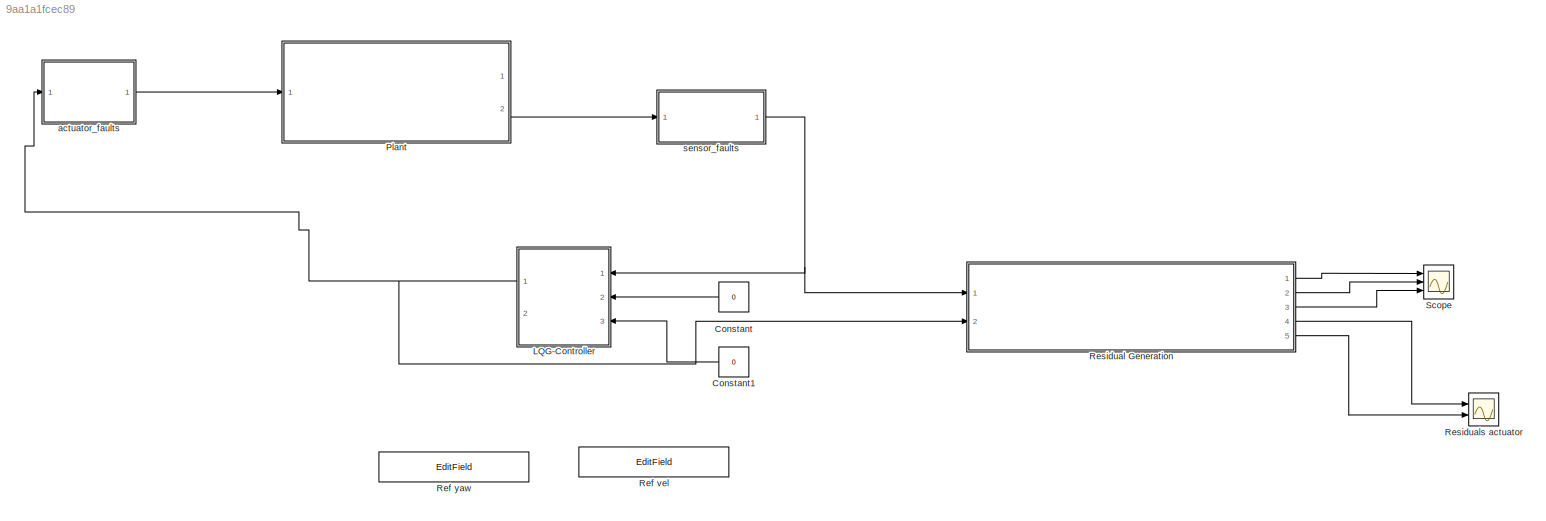
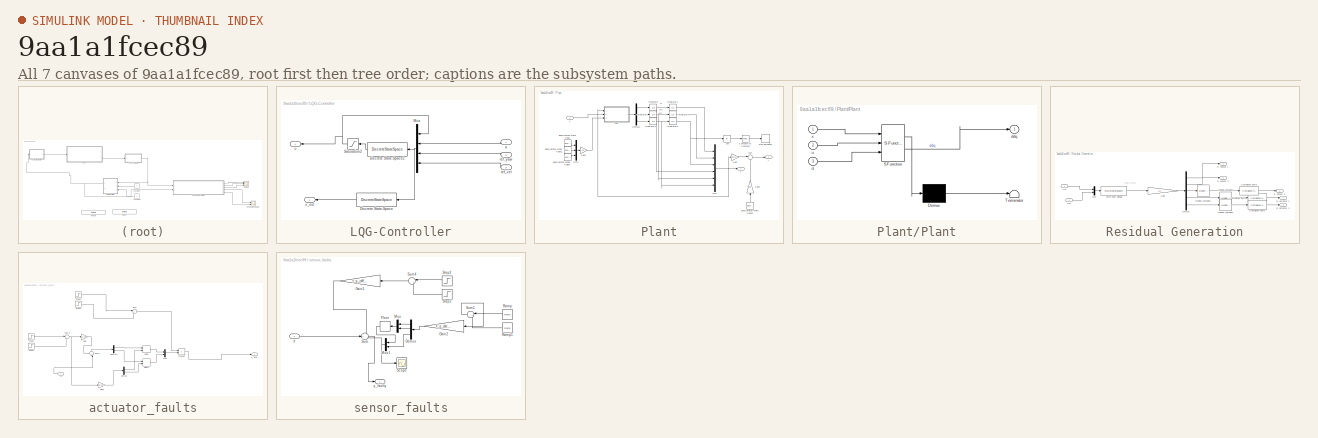
[diagram: thumbnail index - all 7 canvases of the model, root first then tree order]
MODEL slx_9aa1a1fcec89
KIND model
CONFIG AbsTol = auto
CONFIG EnableMultiTasking = off
CONFIG FixedStep = auto
CONFIG MaxStep = auto
CONFIG MinStep = auto
CONFIG RelTol = 1e-3
CONFIG SampleTimeConstraint = Unconstrained
CONFIG SolverName = ode45
CONFIG StartTime = 0.0
CONFIG StopTime = 30
BLOCK [Constant] Constant
  NameLocation = top
  Value = 0
BLOCK [Constant] Constant1
  NameLocation = top
  Value = 0
BLOCK [SubSystem] LQG-Controller
  NameLocation = top
  Ports = [3, 2]
  RequestExecContextInheritance = off
BLOCK [DiscreteStateSpace] LQG-Controller/Discrete State-Space
  A = reg_d.A
  B = reg_d.B
  C = diag(ones(1,8))
  D = zeros(8,7)
  NameLocation = top
  SampleTime = Ts
BLOCK [DiscreteStateSpace] LQG-Controller/Discrete State-Space2
  A = reg_d.A
  B = reg_d.B
  C = reg_d.C
  D = reg_d.D
  NameLocation = top
  SampleTime = Ts
BLOCK [Mux] LQG-Controller/Mux
  DisplayOption = bar
  NameLocation = top
  Ports = [4, 1]
BLOCK [Saturate] LQG-Controller/Saturation2
  LowerLimit = -8
  NameLocation = top
  UpperLimit = 8
BLOCK [Inport] LQG-Controller/ref_vel
  Port = 3
BLOCK [Inport] LQG-Controller/ref_yaw
  Port = 2
BLOCK [Outport] LQG-Controller/u
BLOCK [Outport] LQG-Controller/x_est
  NameLocation = top
  Port = 2
BLOCK [Inport] LQG-Controller/y
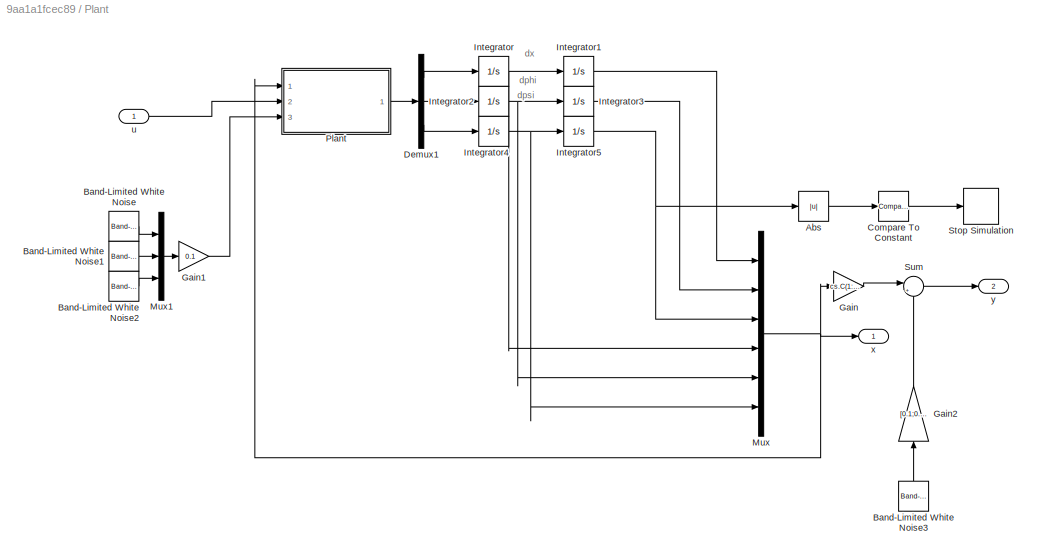
BLOCK [SubSystem] Plant
  Ports = [1, 2]
  RequestExecContextInheritance = off
BLOCK [Abs] Plant/Abs
  SaturateOnIntegerOverflow = off
BLOCK [Reference] Plant/Band-Limited White Noise  REF=simulink/Sources/Band-Limited
White Noise
  Ports = [0, 1]
  SourceBlock = simulink/Sources/Band-Limited\nWhite Noise
  SourceProductBaseCode = SL
  SourceType = Band-Limited White Noise.
BLOCK [Reference] Plant/Band-Limited White Noise1  REF=simulink/Sources/Band-Limited
White Noise
  Ports = [0, 1]
  SourceBlock = simulink/Sources/Band-Limited\nWhite Noise
  SourceProductBaseCode = SL
  SourceType = Band-Limited White Noise.
BLOCK [Reference] Plant/Band-Limited White Noise2  REF=simulink/Sources/Band-Limited
White Noise
  Ports = [0, 1]
  SourceBlock = simulink/Sources/Band-Limited\nWhite Noise
  SourceProductBaseCode = SL
  SourceType = Band-Limited White Noise.
BLOCK [Reference] Plant/Band-Limited White Noise3  REF=simulink/Sources/Band-Limited
White Noise
  NameLocation = right
  Ports = [0, 1]
  SourceBlock = simulink/Sources/Band-Limited\nWhite Noise
  SourceProductBaseCode = SL
  SourceType = Band-Limited White Noise.
BLOCK [Reference] Plant/Compare To Constant  REF=simulink/Logic and Bit
Operations/Compare
To Constant
  Ports = [1, 1]
  SourceBlock = simulink/Logic and Bit\nOperations/Compare\nTo Constant
  SourceProductBaseCode = SL
  SourceType = Compare To Constant
BLOCK [Demux] Plant/Demux1
  Outputs = 3
  Ports = [1, 3]
BLOCK [Gain] Plant/Gain
  Gain = cs.C(1:3,:)
  Multiplication = Matrix(K*u)
BLOCK [Gain] Plant/Gain1
  Gain = 0.1
BLOCK [Gain] Plant/Gain2
  Gain = [0.1;0.1;0.5]
  NameLocation = right
BLOCK [Integrator] Plant/Integrator
  InitialCondition = dx_0
  Ports = [1, 1]
BLOCK [Integrator] Plant/Integrator1
  InitialCondition = x_0
  Ports = [1, 1]
BLOCK [Integrator] Plant/Integrator2
  Ports = [1, 1]
BLOCK [Integrator] Plant/Integrator3
  Ports = [1, 1]
BLOCK [Integrator] Plant/Integrator4
  InitialCondition = dpsi_0
  Ports = [1, 1]
BLOCK [Integrator] Plant/Integrator5
  InitialCondition = psi_0
  LowerSaturationLimit = -pi/2
  Ports = [1, 1]
  UpperSaturationLimit = pi/2
BLOCK [Mux] Plant/Mux
  DisplayOption = bar
  Inputs = 6
  Ports = [6, 1]
BLOCK [Mux] Plant/Mux1
  DisplayOption = bar
  Inputs = 3
  Ports = [3, 1]
BLOCK [SubSystem] Plant/Plant
  ErrorFcn = Stateflow.Translate.translate
  PermitHierarchicalResolution = ExplicitOnly
  Ports = [3, 1]
  RequestExecContextInheritance = off
  SFBlockType = MATLAB Function
  TreatAsAtomicUnit = on
BLOCK [Demux] Plant/Plant/ Demux 
  Outputs = 1
  Ports = [1, 1]
BLOCK [S-Function] Plant/Plant/ SFunction 
  EnableBusSupport = on
  FunctionName = sf_sfun
  Parameters = const
  PortCounts = [3 2]
  Ports = [3, 2]
  SFcnIsStateOwnerBlock = off
  SFunctionDeploymentMode = off
  Tag = Stateflow S-Function 2
BLOCK [Terminator] Plant/Plant/ Terminator 
BLOCK [Inport] Plant/Plant/d
  Port = 3
BLOCK [Outport] Plant/Plant/ddq
BLOCK [Inport] Plant/Plant/u
  Port = 2
BLOCK [Inport] Plant/Plant/x
BLOCK [Stop] Plant/Stop Simulation
BLOCK [Sum] Plant/Sum
  Inputs = |++
  Ports = [2, 1]
BLOCK [Inport] Plant/u
BLOCK [Outport] Plant/x
BLOCK [Outport] Plant/y
  Port = 2
BLOCK [EditField] Ref vel
  Alignment = Center
  LabelPosition = Hide
  ShowInitialText = on
BLOCK [EditField] Ref yaw
  Alignment = Center
  LabelPosition = Hide
  ShowInitialText = on
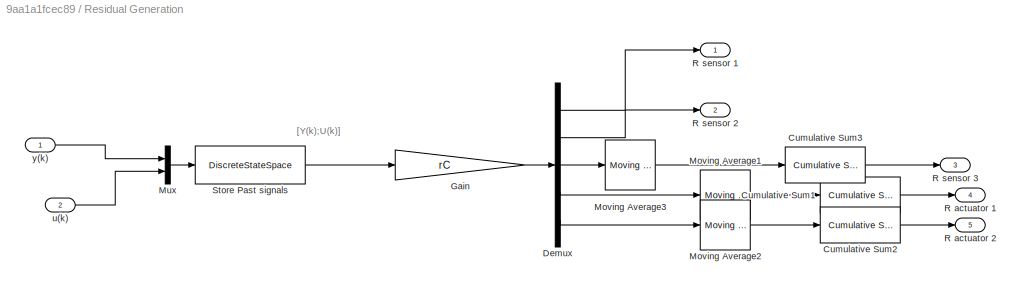
BLOCK [SubSystem] Residual Generation
  Ports = [2, 5]
  RequestExecContextInheritance = off
BLOCK [Reference] Residual Generation/Cumulative Sum1  REF=dspmathops/Cumulative
Sum
  Ports = [1, 1]
  SourceBlock = dspmathops/Cumulative\nSum
  SourceProductBaseCode = DS
  SourceType = Cumulative Sum
  UserDataPersistent = on
BLOCK [Reference] Residual Generation/Cumulative Sum2  REF=dspmathops/Cumulative
Sum
  Ports = [1, 1]
  SourceBlock = dspmathops/Cumulative\nSum
  SourceProductBaseCode = DS
  SourceType = Cumulative Sum
  UserDataPersistent = on
BLOCK [Reference] Residual Generation/Cumulative Sum3  REF=dspmathops/Cumulative
Sum
  Ports = [1, 1]
  SourceBlock = dspmathops/Cumulative\nSum
  SourceProductBaseCode = DS
  SourceType = Cumulative Sum
  UserDataPersistent = on
BLOCK [Demux] Residual Generation/Demux
  Outputs = 5
  Ports = [1, 5]
BLOCK [Gain] Residual Generation/Gain
  Gain = rC
  Multiplication = Matrix(K*u)
BLOCK [Reference] Residual Generation/Moving Average1  REF=dspstat3/Moving
Average
  Ports = [1, 1]
  SourceBlock = dspstat3/Moving\nAverage
  SourceProductBaseCode = DS
  SourceType = dsp.simulink.MovingAverage
BLOCK [Reference] Residual Generation/Moving Average2  REF=dspstat3/Moving
Average
  Ports = [1, 1]
  SourceBlock = dspstat3/Moving\nAverage
  SourceProductBaseCode = DS
  SourceType = dsp.simulink.MovingAverage
BLOCK [Reference] Residual Generation/Moving Average3  REF=dspstat3/Moving
Average
  Ports = [1, 1]
  SourceBlock = dspstat3/Moving\nAverage
  SourceProductBaseCode = DS
  SourceType = dsp.simulink.MovingAverage
BLOCK [Mux] Residual Generation/Mux
  DisplayOption = bar
  Inputs = 2
  Ports = [2, 1]
BLOCK [Outport] Residual Generation/R actuator 1
  Port = 4
BLOCK [Outport] Residual Generation/R actuator 2
  Port = 5
BLOCK [Outport] Residual Generation/R sensor 1
BLOCK [Outport] Residual Generation/R sensor 2
  Port = 2
BLOCK [Outport] Residual Generation/R sensor 3
  Port = 3
BLOCK [DiscreteStateSpace] Residual Generation/Store Past signals
  A = yuw.A
  B = yuw.B
  C = yuw.C
  D = yuw.D
  SampleTime = Ts
BLOCK [Inport] Residual Generation/u(k)
  Port = 2
BLOCK [Inport] Residual Generation/y(k)
BLOCK [Scope] Residuals actuator
  Floating = off
  NumInputPorts = 2
  Ports = [2]
  ScopeSpecificationString = Simulink.scopes.TimeScopeBlockCfg('CurrentConfiguration', extmgr.ConfigurationSet(extmgr.Configuration('Core','General UI',true,'FigureColor',[1 1 1]),extmgr.Configuration('Core','Source UI',true),extmgr.Configuration('Sources','WiredSimulink',true,'DataLoggingVariableName','ScopeData2'),extmgr.Configuration('Visuals','Time Domain',true,'PlotType','Stairs','SerializedDisplays',{struct('MinYLimReal...<+1797ch>
BLOCK [Scope] Scope
  Floating = off
  NumInputPorts = 3
  Ports = [3]
  ScopeSpecificationString = Simulink.scopes.TimeScopeBlockCfg('CurrentConfiguration', extmgr.ConfigurationSet(extmgr.Configuration('Core','General UI',true),extmgr.Configuration('Core','Source UI',true),extmgr.Configuration('Sources','WiredSimulink',true),extmgr.Configuration('Visuals','Time Domain',true,'SerializedDisplays',{struct('MinYLimReal','-2.59384','MaxYLimReal','2.47997','YLabelReal','','MinYLimMag','0.00000','MaxY...<+2817ch>
BLOCK [SubSystem] actuator_faults
  Ports = [1, 1]
  RequestExecContextInheritance = off
BLOCK [Delay] actuator_faults/Delay
  DelayLength = 100
  DelayLengthSource = Input port
  DelayLengthUpperLimit = 1000
  InputPortMap = u0,p1
  Ports = [2, 1]
  SampleTime = Ts
BLOCK [Delay] actuator_faults/Delay1
  DelayLength = 100
  DelayLengthSource = Input port
  DelayLengthUpperLimit = 1000
  InputPortMap = u0,p1
  Ports = [2, 1]
  SampleTime = Ts
BLOCK [Demux] actuator_faults/Demux
  Outputs = 2
  Ports = [1, 2]
BLOCK [Demux] actuator_faults/Demux1
  Outputs = 2
  Ports = [1, 2]
BLOCK [Gain] actuator_faults/Gain
  Gain = f_a_offset
BLOCK [Gain] actuator_faults/Gain1
  Gain = f_a_delay
  Multiplication = Matrix(K*u)
BLOCK [Mux] actuator_faults/Mux
  DisplayOption = bar
  Inputs = 2
  Ports = [2, 1]
BLOCK [Product] actuator_faults/Product
  Ports = [2, 1]
BLOCK [Step] actuator_faults/Step
  SampleTime = 0
  Time = f_t(1)
BLOCK [Step] actuator_faults/Step1
  After = -1
  SampleTime = 0
  Time = f_t(2)
BLOCK [Step] actuator_faults/Step2
  After = f_a_gain
  Before = 1
  SampleTime = 0
  Time = f_t(1)
BLOCK [Step] actuator_faults/Step3
  After = -f_a_gain + [1;1]
  SampleTime = 0
  Time = f_t(2)
BLOCK [Sum] actuator_faults/Sum
  Inputs = |++
  Ports = [2, 1]
BLOCK [Sum] actuator_faults/Sum1
  Inputs = ++|
  NameLocation = right
  Ports = [2, 1]
BLOCK [Sum] actuator_faults/Sum3
  Inputs = |++
  Ports = [2, 1]
BLOCK [Inport] actuator_faults/u
BLOCK [Outport] actuator_faults/u_faulty
BLOCK [SubSystem] sensor_faults
  Ports = [1, 1]
  RequestExecContextInheritance = off
BLOCK [Demux] sensor_faults/Demux
  NameLocation = top
  Outputs = 3
  Ports = [1, 3]
BLOCK [Rounding] sensor_faults/Floor
  NameLocation = top
BLOCK [Gain] sensor_faults/Gain1
  Gain = f_s_offset
  Multiplication = Matrix(K*u)
  NameLocation = top
BLOCK [Gain] sensor_faults/Gain2
  Gain = f_s_drift
  Multiplication = Matrix(K*u)
  NameLocation = top
BLOCK [Mux] sensor_faults/Mux
  DisplayOption = bar
  Inputs = 2
  NameLocation = top
  Ports = [2, 1]
BLOCK [Mux] sensor_faults/Mux1
  DisplayOption = bar
  Inputs = 2
  NameLocation = top
  Ports = [2, 1]
BLOCK [Reference] sensor_faults/Ramp  REF=simulink/Sources/Ramp
  NameLocation = top
  Ports = [0, 1]
  SourceBlock = simulink/Sources/Ramp
  SourceProductBaseCode = SL
  SourceType = Ramp
BLOCK [Reference] sensor_faults/Ramp1  REF=simulink/Sources/Ramp
  NameLocation = top
  Ports = [0, 1]
  SourceBlock = simulink/Sources/Ramp
  SourceProductBaseCode = SL
  SourceType = Ramp
BLOCK [Scope] sensor_faults/Scope
  Floating = off
  NumInputPorts = 1
  Ports = [1]
  ScopeSpecificationString = Simulink.scopes.TimeScopeBlockCfg('CurrentConfiguration', extmgr.ConfigurationSet(extmgr.Configuration('Core','General UI',true),extmgr.Configuration('Core','Source UI',true),extmgr.Configuration('Sources','WiredSimulink',true,'DataLoggingVariableName','ScopeData1'),extmgr.Configuration('Visuals','Time Domain',true,'SerializedDisplays',{struct('MinYLimReal','-2.5','MaxYLimReal','22.5','YLabelReal'...<+1366ch>
BLOCK [Step] sensor_faults/Step2
  NameLocation = top
  SampleTime = 0
  Time = f_t(1)
BLOCK [Step] sensor_faults/Step3
  After = -1
  NameLocation = top
  SampleTime = 0
  Time = f_t(2)
BLOCK [Sum] sensor_faults/Sum
  Inputs = +++
  Ports = [3, 1]
BLOCK [Sum] sensor_faults/Sum1
  Inputs = |++
  NameLocation = top
  Ports = [2, 1]
BLOCK [Sum] sensor_faults/Sum4
  Inputs = |++
  NameLocation = top
  Ports = [2, 1]
BLOCK [Inport] sensor_faults/y
BLOCK [Outport] sensor_faults/y_faulty
ANNOTATION Plant: dphi
ANNOTATION Plant: dpsi
ANNOTATION Plant: dx
ANNOTATION Residual Generation: [Y(k);U(k)]
LINE Constant1:1 -> LQG-Controller:3
LINE Constant:1 -> LQG-Controller:2
LINE LQG-Controller/Discrete State-Space2:1 -> LQG-Controller/Saturation2:1
LINE LQG-Controller/Discrete State-Space:1 -> LQG-Controller/x_est:1
NET LQG-Controller/Mux:1 -> LQG-Controller/Discrete State-Space2:1, LQG-Controller/Discrete State-Space:1
NET LQG-Controller/Saturation2:1 -> LQG-Controller/Mux:1, LQG-Controller/u:1
LINE LQG-Controller/ref_vel:1 -> LQG-Controller/Mux:4
LINE LQG-Controller/ref_yaw:1 -> LQG-Controller/Mux:3
LINE LQG-Controller/y:1 -> LQG-Controller/Mux:2
NET LQG-Controller:1 -> Residual Generation:2, actuator_faults:1
LINE Plant/Abs:1 -> Plant/Compare To Constant:1
LINE Plant/Band-Limited White Noise1:1 -> Plant/Mux1:2
LINE Plant/Band-Limited White Noise2:1 -> Plant/Mux1:3
LINE Plant/Band-Limited White Noise3:1 -> Plant/Gain2:1
LINE Plant/Band-Limited White Noise:1 -> Plant/Mux1:1
LINE Plant/Compare To Constant:1 -> Plant/Stop Simulation:1
LINE Plant/Demux1:1 -> Plant/Integrator:1
LINE Plant/Demux1:2 -> Plant/Integrator2:1
LINE Plant/Demux1:3 -> Plant/Integrator4:1
LINE Plant/Gain1:1 -> Plant/Plant:3
LINE Plant/Gain2:1 -> Plant/Sum:2
LINE Plant/Gain:1 -> Plant/Sum:1
LINE Plant/Integrator1:1 -> Plant/Mux:1
NET Plant/Integrator2:1 -> Plant/Integrator3:1, Plant/Mux:5
LINE Plant/Integrator3:1 -> Plant/Mux:2
NET Plant/Integrator4:1 -> Plant/Integrator5:1, Plant/Mux:6
NET Plant/Integrator5:1 -> Plant/Abs:1, Plant/Mux:3
NET Plant/Integrator:1 -> Plant/Integrator1:1, Plant/Mux:4
LINE Plant/Mux1:1 -> Plant/Gain1:1
NET Plant/Mux:1 -> Plant/Gain:1, Plant/Plant:1, Plant/x:1
LINE Plant/Plant:1 -> Plant/Demux1:1
LINE Plant/Sum:1 -> Plant/y:1
LINE Plant/u:1 -> Plant/Plant:2
LINE Plant:2 -> sensor_faults:1
LINE Residual Generation/Cumulative Sum1:1 -> Residual Generation/R actuator 1:1
LINE Residual Generation/Cumulative Sum2:1 -> Residual Generation/R actuator 2:1
LINE Residual Generation/Cumulative Sum3:1 -> Residual Generation/R sensor 3:1
LINE Residual Generation/Demux:1 -> Residual Generation/R sensor 1:1
LINE Residual Generation/Demux:2 -> Residual Generation/R sensor 2:1
LINE Residual Generation/Demux:3 -> Residual Generation/Moving Average3:1
LINE Residual Generation/Demux:4 -> Residual Generation/Moving Average1:1
LINE Residual Generation/Demux:5 -> Residual Generation/Moving Average2:1
LINE Residual Generation/Gain:1 -> Residual Generation/Demux:1
LINE Residual Generation/Moving Average1:1 -> Residual Generation/Cumulative Sum1:1
LINE Residual Generation/Moving Average2:1 -> Residual Generation/Cumulative Sum2:1
LINE Residual Generation/Moving Average3:1 -> Residual Generation/Cumulative Sum3:1
LINE Residual Generation/Mux:1 -> Residual Generation/Store Past signals:1
LINE Residual Generation/Store Past signals:1 -> Residual Generation/Gain:1
LINE Residual Generation/u(k):1 -> Residual Generation/Mux:2
LINE Residual Generation/y(k):1 -> Residual Generation/Mux:1
LINE Residual Generation:1 -> Scope:1
LINE Residual Generation:2 -> Scope:2
LINE Residual Generation:3 -> Scope:3
LINE Residual Generation:4 -> Residuals actuator:1
LINE Residual Generation:5 -> Residuals actuator:2
LINE actuator_faults/Delay1:1 -> actuator_faults/Mux:2
LINE actuator_faults/Delay:1 -> actuator_faults/Mux:1
LINE actuator_faults/Demux1:1 -> actuator_faults/Delay:1
LINE actuator_faults/Demux1:2 -> actuator_faults/Delay1:1
LINE actuator_faults/Demux:1 -> actuator_faults/Delay:2
LINE actuator_faults/Demux:2 -> actuator_faults/Delay1:2
LINE actuator_faults/Gain1:1 -> actuator_faults/Demux:1
LINE actuator_faults/Gain:1 -> actuator_faults/Sum1:1
LINE actuator_faults/Mux:1 -> actuator_faults/Product:2
LINE actuator_faults/Product:1 -> actuator_faults/u_faulty:1
LINE actuator_faults/Step1:1 -> actuator_faults/Sum3:2
LINE actuator_faults/Step2:1 -> actuator_faults/Sum:1
LINE actuator_faults/Step3:1 -> actuator_faults/Sum:2
LINE actuator_faults/Step:1 -> actuator_faults/Sum3:1
LINE actuator_faults/Sum1:1 -> actuator_faults/Demux1:1
NET actuator_faults/Sum3:1 -> actuator_faults/Gain1:1, actuator_faults/Gain:1
LINE actuator_faults/Sum:1 -> actuator_faults/Product:1
LINE actuator_faults/u:1 -> actuator_faults/Sum1:2
LINE actuator_faults:1 -> Plant:1
LINE sensor_faults/Demux:1 -> sensor_faults/Mux:1
LINE sensor_faults/Demux:2 -> sensor_faults/Mux:2
LINE sensor_faults/Demux:3 -> sensor_faults/Mux1:2
LINE sensor_faults/Floor:1 -> sensor_faults/Mux1:1
LINE sensor_faults/Gain1:1 -> sensor_faults/Sum:1
LINE sensor_faults/Gain2:1 -> sensor_faults/Demux:1
NET sensor_faults/Mux1:1 -> sensor_faults/Scope:1, sensor_faults/Sum:3
LINE sensor_faults/Mux:1 -> sensor_faults/Floor:1
LINE sensor_faults/Ramp1:1 -> sensor_faults/Sum1:2
LINE sensor_faults/Ramp:1 -> sensor_faults/Sum1:1
LINE sensor_faults/Step2:1 -> sensor_faults/Sum4:1
LINE sensor_faults/Step3:1 -> sensor_faults/Sum4:2
LINE sensor_faults/Sum1:1 -> sensor_faults/Gain2:1
LINE sensor_faults/Sum4:1 -> sensor_faults/Gain1:1
LINE sensor_faults/Sum:1 -> sensor_faults/y_faulty:1
LINE sensor_faults/y:1 -> sensor_faults/Sum:2
NET sensor_faults:1 -> LQG-Controller:1, Residual Generation:1
note: NET lines group one-source signal fan-out (src -> all destinations, sorted); 1:1 wires keep LINE
CHART Plant/Plant states=1 transitions=1
  STATE_LABEL 'eML_blk_kernel()'
  STATE_LABEL 'SCRIPT:\nfunction ddq = legoway_nonlinear(x,u,d,const)\n\n\t% Load constants\n\tmw  = const.mw;     % wheel mass\n\tmb  = const.mb;     % body mass\n\t\n\tR   = const.R;      % wheel radius\n\tW   = const.W;      % half body width\n\tL   = const.L;      % length from wheel axle to center of mass\n\tIw  = const.Iw;     % wheel moment of inertia\n\tIj  = const.Ij;     % jaw moment of inertia\n\tIp  = const.Ip;     % pitc...<+1296ch>'
CHART  states=0 transitions=0
